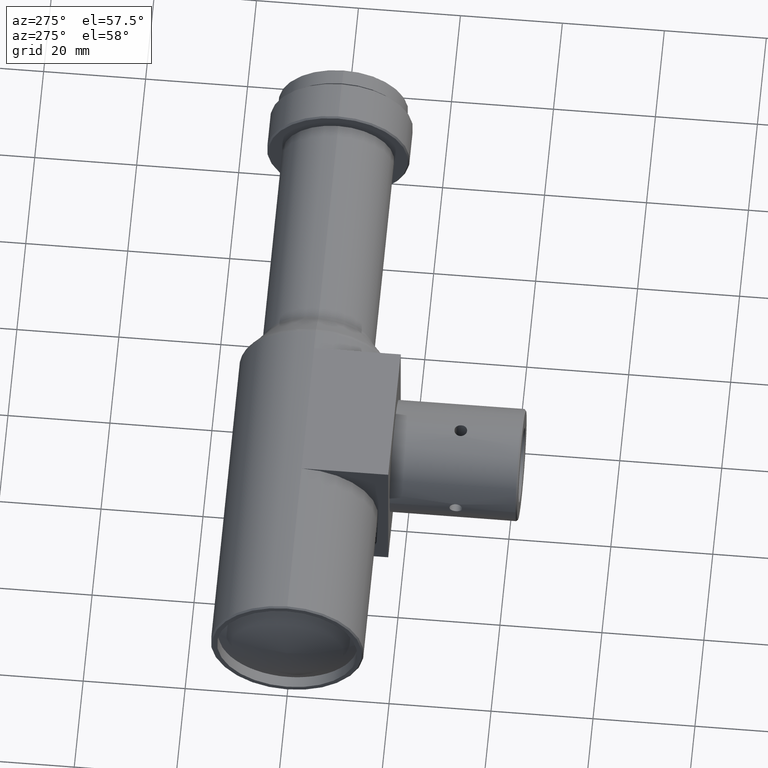
[diagram: clean part render]
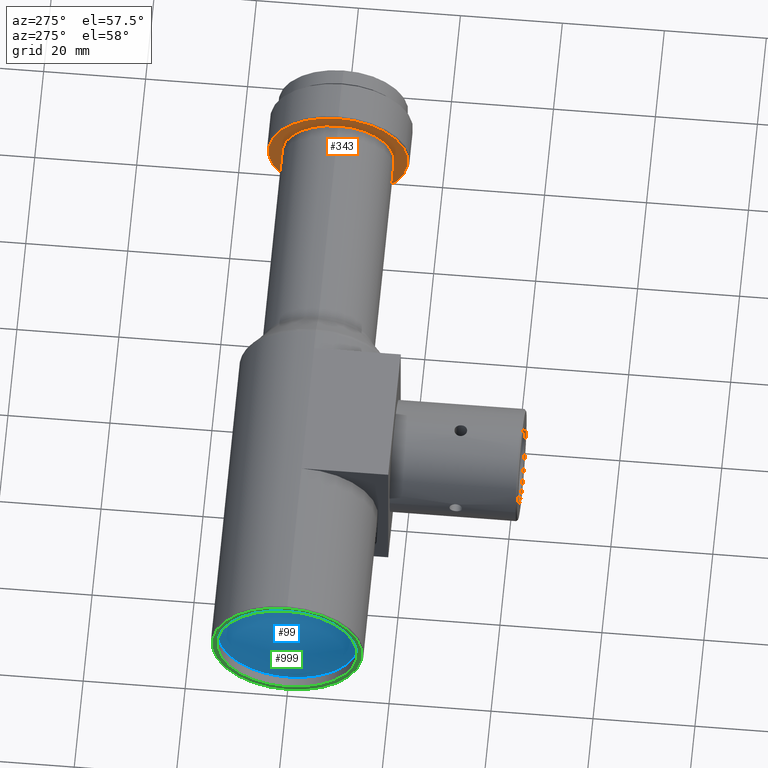
[diagram: same view with three faces highlighted in distinct colors, each labeled with its STEP entity id]
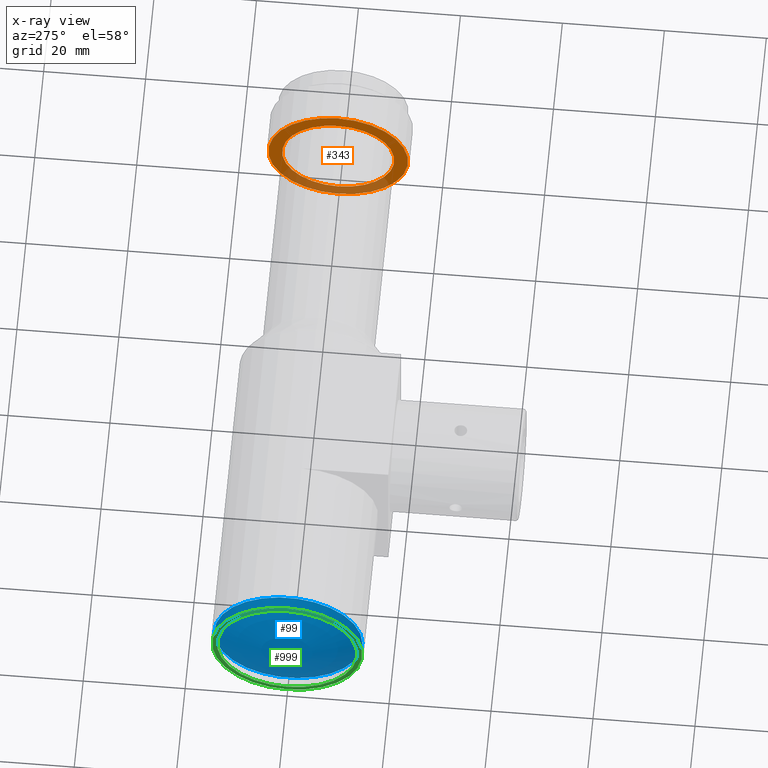
[diagram: x-ray of the same camera — body ghosted, the three highlighted faces saturated]
A machine part, auxiliary view with three faces highlighted in distinct colors.
The next image is the same camera in x-ray (body ghosted, the three faces saturated) — at least one of them is partly hidden behind the body in this view.
Their STEP definitions:

[orange] entity #343 — the highlighted planar face has unit normal (1, -0, 0).
#15 = DIRECTION ( 'NONE',  ( 0.000000000000000000, 0.000000000000000000, -1.000000000000000000 ) ) ;
#25 = AXIS2_PLACEMENT_3D ( 'NONE', #396, #498, #482 ) ;
#37 = EDGE_CURVE ( 'NONE', #1067, #1067, #271, .T. ) ;
#46 = AXIS2_PLACEMENT_3D ( 'NONE', #893, #1014, #1177 ) ;
#50 = PLANE ( 'NONE',  #46 ) ;
#56 = EDGE_CURVE ( 'NONE', #698, #698, #506, .T. ) ;
#212 = CARTESIAN_POINT ( 'NONE',  ( 114.6000000000000085, 0.000000000000000000, 0.000000000000000000 ) ) ;
#235 = ORIENTED_EDGE ( 'NONE', *, *, #56, .F. ) ;
#271 = CIRCLE ( 'NONE', #925, 13.70000000000000107 ) ;
#343 = ADVANCED_FACE ( 'NONE', ( #802, #1185 ), #50, .F. ) ;
#396 = CARTESIAN_POINT ( 'NONE',  ( 114.6000000000000085, 0.000000000000000000, 0.000000000000000000 ) ) ;
#482 = DIRECTION ( 'NONE',  ( 0.000000000000000000, 0.000000000000000000, 1.000000000000000000 ) ) ;
#498 = DIRECTION ( 'NONE',  ( -1.000000000000000000, -0.000000000000000000, -0.000000000000000000 ) ) ;
#506 = CIRCLE ( 'NONE', #25, 11.00000000000000000 ) ;
#600 = CARTESIAN_POINT ( 'NONE',  ( 114.6000000000000085, 0.000000000000000000, 11.00000000000000000 ) ) ;
#698 = VERTEX_POINT ( 'NONE', #600 ) ;
#771 = EDGE_LOOP ( 'NONE', ( #957 ) ) ;
#802 = FACE_OUTER_BOUND ( 'NONE', #771, .T. ) ;
#888 = CARTESIAN_POINT ( 'NONE',  ( 114.6000000000000085, 0.000000000000000000, -13.70000000000000107 ) ) ;
#893 = CARTESIAN_POINT ( 'NONE',  ( 114.6000000000000085, 11.00000000000000000, 0.000000000000000000 ) ) ;
#925 = AXIS2_PLACEMENT_3D ( 'NONE', #212, #971, #15 ) ;
#957 = ORIENTED_EDGE ( 'NONE', *, *, #37, .F. ) ;
#971 = DIRECTION ( 'NONE',  ( 1.000000000000000000, 0.000000000000000000, 0.000000000000000000 ) ) ;
#1014 = DIRECTION ( 'NONE',  ( 1.000000000000000000, -0.000000000000000000, 0.000000000000000000 ) ) ;
#1067 = VERTEX_POINT ( 'NONE', #888 ) ;
#1156 = EDGE_LOOP ( 'NONE', ( #235 ) ) ;
#1177 = DIRECTION ( 'NONE',  ( 0.000000000000000000, 0.000000000000000000, -1.000000000000000000 ) ) ;
#1185 = FACE_BOUND ( 'NONE', #1156, .T. ) ;

[blue] entity #99 — the highlighted spherical surface has radius 31.2095 mm.
#40 = ORIENTED_EDGE ( 'NONE', *, *, #1136, .F. ) ;
#99 = ADVANCED_FACE ( 'NONE', ( #715 ), #330, .T. ) ;
#127 = DIRECTION ( 'NONE',  ( -1.000000000000000000, -1.111663208988749164E-16, -1.465849399210088573E-32 ) ) ;
#148 = DIRECTION ( 'NONE',  ( 1.111663208988749164E-16, -1.000000000000000000, -1.318609258053554375E-16 ) ) ;
#267 = DIRECTION ( 'NONE',  ( 1.000000000000000000, 2.465190328815661892E-32, 2.736911063134408342E-48 ) ) ;
#276 = CARTESIAN_POINT ( 'NONE',  ( 2.599999999999991207, 3.469446951953614189E-15, -2.775557561562891351E-14 ) ) ;
#330 = SPHERICAL_SURFACE ( 'NONE', #628, 31.20951493132240273 ) ;
#428 = CARTESIAN_POINT ( 'NONE',  ( 30.21805672755462169, 3.469446951953614189E-15, -2.775557561562891351E-14 ) ) ;
#561 = DIRECTION ( 'NONE',  ( 0.000000000000000000, 1.000000000000000000, 1.318609258053554129E-16 ) ) ;
#628 = AXIS2_PLACEMENT_3D ( 'NONE', #428, #127, #148 ) ;
#715 = FACE_OUTER_BOUND ( 'NONE', #857, .T. ) ;
#850 = AXIS2_PLACEMENT_3D ( 'NONE', #276, #267, #561 ) ;
#857 = EDGE_LOOP ( 'NONE', ( #40 ) ) ;
#1029 = CIRCLE ( 'NONE', #850, 14.53536256314270148 ) ;
#1086 = VERTEX_POINT ( 'NONE', #1186 ) ;
#1136 = EDGE_CURVE ( 'NONE', #1086, #1086, #1029, .T. ) ;
#1186 = CARTESIAN_POINT ( 'NONE',  ( 2.599999999999991207, 14.53536256314270503, -2.583892925113641302E-14 ) ) ;

[green] entity #999 — the highlighted planar face has unit normal (1, -0, 0).
#59 = CARTESIAN_POINT ( 'NONE',  ( 0.000000000000000000, 0.000000000000000000, 13.75000000000000000 ) ) ;
#94 = CIRCLE ( 'NONE', #196, 13.75000000000000000 ) ;
#128 = AXIS2_PLACEMENT_3D ( 'NONE', #134, #289, #889 ) ;
#134 = CARTESIAN_POINT ( 'NONE',  ( 0.000000000000000000, 0.000000000000000000, 0.000000000000000000 ) ) ;
#139 = CARTESIAN_POINT ( 'NONE',  ( 0.000000000000000000, 0.000000000000000000, -14.69999999999999929 ) ) ;
#172 = ORIENTED_EDGE ( 'NONE', *, *, #912, .F. ) ;
#190 = DIRECTION ( 'NONE',  ( 0.000000000000000000, 0.000000000000000000, -1.000000000000000000 ) ) ;
#196 = AXIS2_PLACEMENT_3D ( 'NONE', #673, #953, #225 ) ;
#225 = DIRECTION ( 'NONE',  ( 0.000000000000000000, 0.000000000000000000, 1.000000000000000000 ) ) ;
#287 = DIRECTION ( 'NONE',  ( 1.000000000000000000, -0.000000000000000000, 0.000000000000000000 ) ) ;
#289 = DIRECTION ( 'NONE',  ( 1.000000000000000000, 0.000000000000000000, 0.000000000000000000 ) ) ;
#295 = PLANE ( 'NONE',  #1149 ) ;
#309 = CIRCLE ( 'NONE', #128, 14.69999999999999929 ) ;
#368 = FACE_OUTER_BOUND ( 'NONE', #527, .T. ) ;
#467 = CARTESIAN_POINT ( 'NONE',  ( 0.000000000000000000, 0.000000000000000000, 0.000000000000000000 ) ) ;
#527 = EDGE_LOOP ( 'NONE', ( #862 ) ) ;
#592 = EDGE_LOOP ( 'NONE', ( #172 ) ) ;
#673 = CARTESIAN_POINT ( 'NONE',  ( 0.000000000000000000, 0.000000000000000000, 0.000000000000000000 ) ) ;
#677 = FACE_BOUND ( 'NONE', #592, .T. ) ;
#818 = EDGE_CURVE ( 'NONE', #991, #991, #309, .T. ) ;
#862 = ORIENTED_EDGE ( 'NONE', *, *, #818, .F. ) ;
#889 = DIRECTION ( 'NONE',  ( 0.000000000000000000, 0.000000000000000000, -1.000000000000000000 ) ) ;
#900 = VERTEX_POINT ( 'NONE', #59 ) ;
#912 = EDGE_CURVE ( 'NONE', #900, #900, #94, .T. ) ;
#953 = DIRECTION ( 'NONE',  ( -1.000000000000000000, -0.000000000000000000, -0.000000000000000000 ) ) ;
#991 = VERTEX_POINT ( 'NONE', #139 ) ;
#999 = ADVANCED_FACE ( 'NONE', ( #368, #677 ), #295, .F. ) ;
#1149 = AXIS2_PLACEMENT_3D ( 'NONE', #467, #287, #190 ) ;